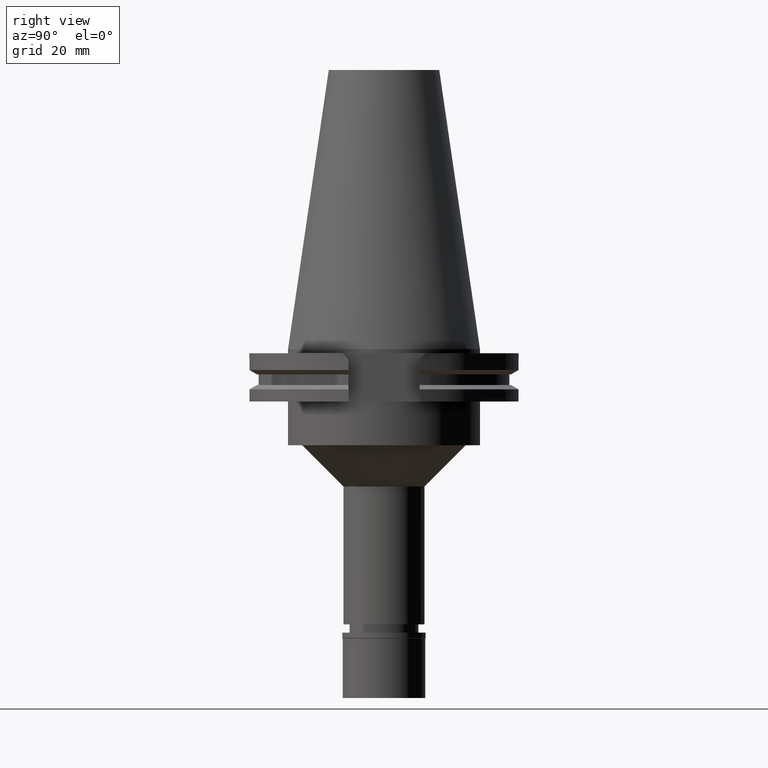
[diagram: clean part render]
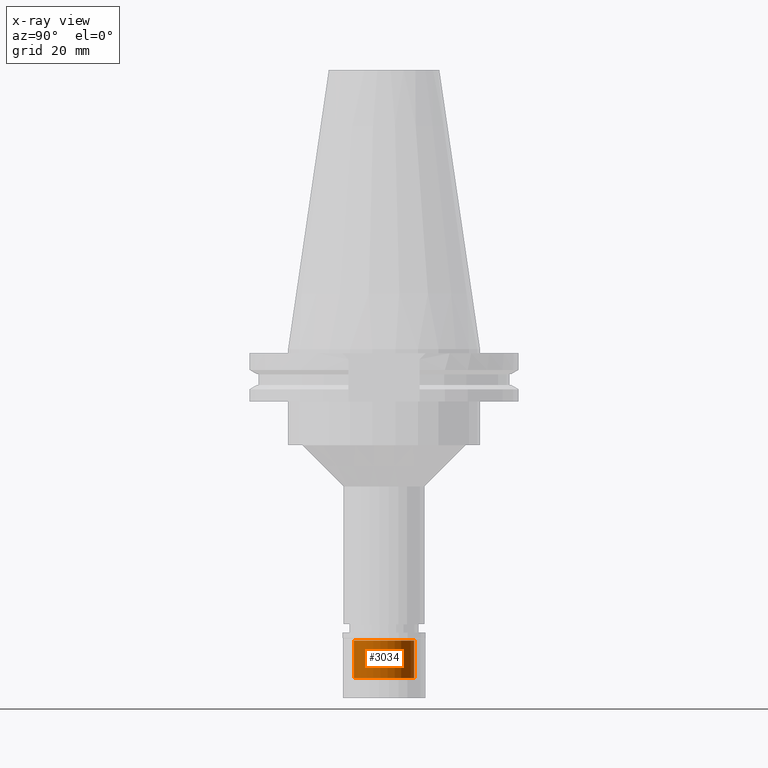
[diagram: x-ray — body ghosted, one internal face saturated and labeled with its STEP entity id]
A machine part, right view, then the same camera in x-ray: the body is ghosted and one INTERNAL B-rep face — a face not visible from any outside direction — is saturated and labeled: STEP entity #3034.
In plain terms, the highlighted cylindrical surface (edge-blend (fillet) strip) has radius 11 mm, axis along (0, 0, -1).
Its self-contained STEP definition (entity closure, byte-faithful):
#42 = VECTOR ( 'NONE', #2035, 1000.000000000000000 ) ;
#85 = EDGE_LOOP ( 'NONE', ( #3045, #504, #462, #275 ) ) ;
#200 = CARTESIAN_POINT ( 'NONE',  ( 0.0000000000000000000, 0.0000000000000000000, -2.899999999999999911 ) ) ;
#275 = ORIENTED_EDGE ( 'NONE', *, *, #1473, .F. ) ;
#285 = CARTESIAN_POINT ( 'NONE',  ( 0.0000000000000000000, -11.00000000000000000, -16.50000000000000000 ) ) ;
#462 = ORIENTED_EDGE ( 'NONE', *, *, #3061, .T. ) ;
#473 = DIRECTION ( 'NONE',  ( 0.0000000000000000000, 0.0000000000000000000, -1.000000000000000000 ) ) ;
#504 = ORIENTED_EDGE ( 'NONE', *, *, #1952, .T. ) ;
#534 = CYLINDRICAL_SURFACE ( 'NONE', #2694, 11.00000000000000000 ) ;
#652 = VECTOR ( 'NONE', #797, 1000.000000000000000 ) ;
#687 = LINE ( 'NONE', #2734, #652 ) ;
#797 = DIRECTION ( 'NONE',  ( 0.0000000000000000000, 0.0000000000000000000, 1.000000000000000000 ) ) ;
#972 = VERTEX_POINT ( 'NONE', #2063 ) ;
#995 = DIRECTION ( 'NONE',  ( 0.0000000000000000000, 0.0000000000000000000, -1.000000000000000000 ) ) ;
#1112 = DIRECTION ( 'NONE',  ( 0.0000000000000000000, 1.000000000000000000, 0.0000000000000000000 ) ) ;
#1284 = FACE_OUTER_BOUND ( 'NONE', #85, .T. ) ;
#1473 = EDGE_CURVE ( 'NONE', #1690, #2579, #2000, .T. ) ;
#1493 = CARTESIAN_POINT ( 'NONE',  ( 0.0000000000000000000, 11.00000000000000000, -16.50000000000000000 ) ) ;
#1551 = DIRECTION ( 'NONE',  ( 0.0000000000000000000, 0.0000000000000000000, 1.000000000000000000 ) ) ;
#1636 = AXIS2_PLACEMENT_3D ( 'NONE', #2277, #995, #1112 ) ;
#1690 = VERTEX_POINT ( 'NONE', #2578 ) ;
#1706 = VERTEX_POINT ( 'NONE', #285 ) ;
#1952 = EDGE_CURVE ( 'NONE', #1706, #972, #687, .T. ) ;
#2000 = LINE ( 'NONE', #1493, #42 ) ;
#2035 = DIRECTION ( 'NONE',  ( 0.0000000000000000000, 0.0000000000000000000, 1.000000000000000000 ) ) ;
#2054 = DIRECTION ( 'NONE',  ( 0.0000000000000000000, -1.000000000000000000, 0.0000000000000000000 ) ) ;
#2063 = CARTESIAN_POINT ( 'NONE',  ( 0.0000000000000000000, -11.00000000000000000, -2.899999999999999911 ) ) ;
#2277 = CARTESIAN_POINT ( 'NONE',  ( 0.0000000000000000000, 0.0000000000000000000, -16.50000000000000000 ) ) ;
#2307 = DIRECTION ( 'NONE',  ( 0.0000000000000000000, -1.000000000000000000, 0.0000000000000000000 ) ) ;
#2320 = CIRCLE ( 'NONE', #2848, 11.00000000000000000 ) ;
#2578 = CARTESIAN_POINT ( 'NONE',  ( 0.0000000000000000000, 11.00000000000000000, -16.50000000000000000 ) ) ;
#2579 = VERTEX_POINT ( 'NONE', #2781 ) ;
#2694 = AXIS2_PLACEMENT_3D ( 'NONE', #2793, #473, #2307 ) ;
#2734 = CARTESIAN_POINT ( 'NONE',  ( 0.0000000000000000000, -11.00000000000000000, -16.50000000000000000 ) ) ;
#2781 = CARTESIAN_POINT ( 'NONE',  ( 0.0000000000000000000, 11.00000000000000000, -2.899999999999999911 ) ) ;
#2793 = CARTESIAN_POINT ( 'NONE',  ( 0.0000000000000000000, 0.0000000000000000000, 0.0000000000000000000 ) ) ;
#2848 = AXIS2_PLACEMENT_3D ( 'NONE', #200, #1551, #2054 ) ;
#2956 = CIRCLE ( 'NONE', #1636, 11.00000000000000000 ) ;
#3034 = ADVANCED_FACE ( 'NONE', ( #1284 ), #534, .F. ) ;
#3045 = ORIENTED_EDGE ( 'NONE', *, *, #3160, .T. ) ;
#3061 = EDGE_CURVE ( 'NONE', #972, #2579, #2320, .T. ) ;
#3160 = EDGE_CURVE ( 'NONE', #1690, #1706, #2956, .T. ) ;